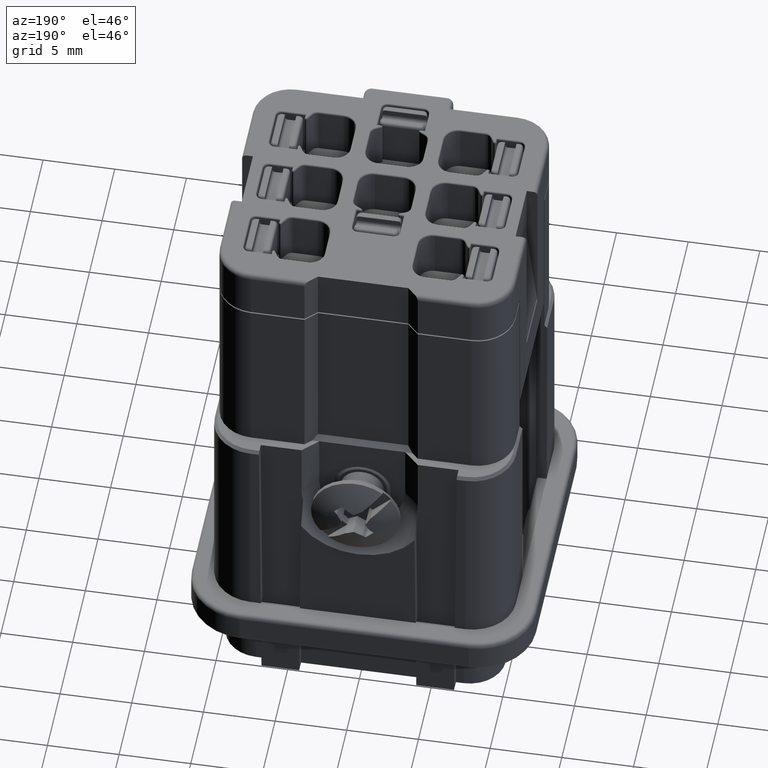
[diagram: clean part render]
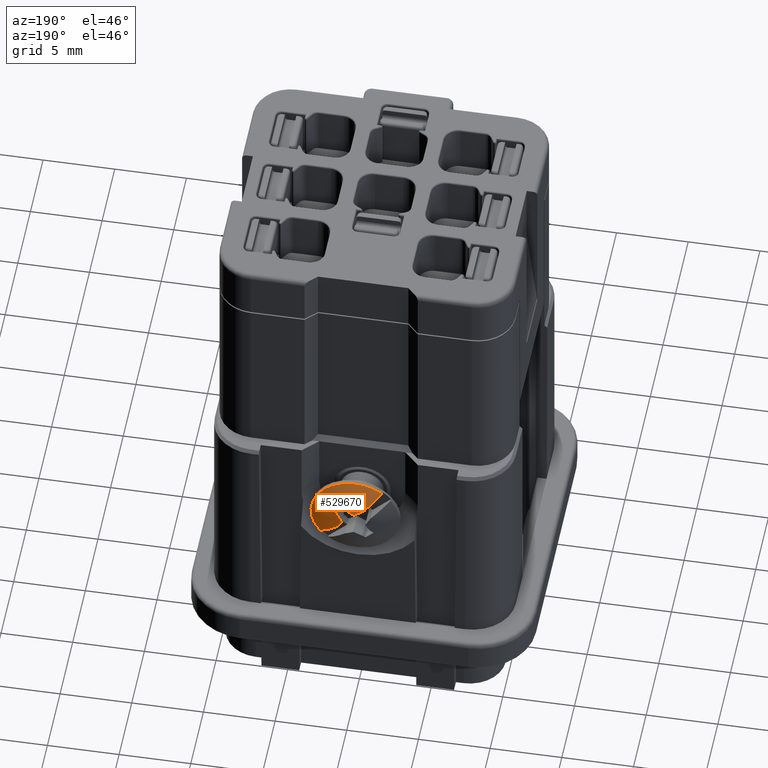
[diagram: same view with one face highlighted and labeled with its STEP entity id]
A machine part, auxiliary view. The second image highlights one B-rep face of the part: STEP entity #529670.
In plain terms, the highlighted spherical surface has radius 6.0779 mm.
Its self-contained STEP definition (entity closure, byte-faithful):
#472080=CARTESIAN_POINT('',(47.9292979315531,54.9909378235294,
37.1147863565477));
#472090=DIRECTION('',(-0.499999999999996,0.,0.866025403784441));
#472100=DIRECTION('',(0.866025403784441,0.,0.499999999999996));
#472110=AXIS2_PLACEMENT_3D('',#472080,#472090,#472100);
#472120=CIRCLE('',#472110,6.03634154592337);
#472130=CARTESIAN_POINT('',(48.8852857640086,60.9254865801441,
37.6667261889578));
#472140=VERTEX_POINT('',#472130);
#472150=CARTESIAN_POINT('',(48.284245,61.0133489711105,37.3197151420635)
);
#472160=VERTEX_POINT('',#472150);
#472170=EDGE_CURVE('',#472140,#472160,#472120,.T.);
#476040=CARTESIAN_POINT('',(48.8990313565477,54.9909378235294,
36.1450529315531));
#476050=DIRECTION('',(0.86602540378444,0.,-0.499999999999998));
#476060=DIRECTION('',(-0.499999999999998,-0.,-0.86602540378444));
#476070=AXIS2_PLACEMENT_3D('',#476040,#476050,#476060);
#476080=CIRCLE('',#476070,6.03634154592337);
#476090=CARTESIAN_POINT('',(49.1039601420635,61.0133489711105,36.5));
#476100=VERTEX_POINT('',#476090);
#476110=CARTESIAN_POINT('',(49.4509711889578,60.9254865801441,
37.1010407640085));
#476120=VERTEX_POINT('',#476110);
#476130=EDGE_CURVE('',#476100,#476120,#476080,.T.);
#478910=CARTESIAN_POINT('',(48.6391920684469,54.9909378235294,
37.1147863565476));
#478920=DIRECTION('',(0.499999999999996,0.,0.866025403784441));
#478930=DIRECTION('',(0.866025403784441,0.,-0.499999999999996));
#478940=AXIS2_PLACEMENT_3D('',#478910,#478920,#478930);
#478950=CIRCLE('',#478940,6.03634154592337);
#478960=CARTESIAN_POINT('',(47.6832042359915,60.9254865801441,
37.6667261889578));
#478970=VERTEX_POINT('',#478960);
#478980=EDGE_CURVE('',#472160,#478970,#478950,.T.);
#496840=CARTESIAN_POINT('',(48.284245,60.218879,36.5));
#496850=DIRECTION('',(0.,-1.,0.));
#496860=DIRECTION('',(-0.707106781186547,0.,-0.707106781186548));
#496870=AXIS2_PLACEMENT_3D('',#496840,#496850,#496860);
#496880=CIRCLE('',#496870,3.09999999999999);
#497040=CARTESIAN_POINT('',(46.3933812005462,60.218879,38.956549224403))
;
#497050=VERTEX_POINT('',#497040);
#497080=CARTESIAN_POINT('',(50.4762760216783,60.218879,38.6920310216783)
);
#497090=VERTEX_POINT('',#497080);
#497100=EDGE_CURVE('',#497090,#497050,#496880,.T.);
#501960=CARTESIAN_POINT('',(48.284245,54.9909378235294,36.5));
#501970=DIRECTION('',(0.,-1.,0.));
#501980=DIRECTION('',(-0.707106781186548,0.,-0.707106781186548));
#501990=AXIS2_PLACEMENT_3D('',#501960,#501970,#501980);
#502000=SPHERICAL_SURFACE('',#501990,6.07794117647059);
#510260=CARTESIAN_POINT('',(48.5670877124746,54.9909378235294,
36.7828427124746));
#510270=DIRECTION('',(0.707106781186547,0.,0.707106781186548));
#510280=DIRECTION('',(0.,-1.,0.));
#510290=AXIS2_PLACEMENT_3D('',#510260,#510270,#510280);
#510300=CIRCLE('',#510290,6.06476454156603);
#510310=EDGE_CURVE('',#478970,#497050,#510300,.T.);
#511140=CARTESIAN_POINT('',(49.4509711889578,60.9254865801441,
35.8989592359915));
#511150=VERTEX_POINT('',#511140);
#511180=CARTESIAN_POINT('',(48.8990313565476,54.9909378235294,
36.8549470684469));
#511190=DIRECTION('',(0.866025403784437,0.,0.500000000000002));
#511200=DIRECTION('',(0.500000000000002,-0.,-0.866025403784437));
#511210=AXIS2_PLACEMENT_3D('',#511180,#511190,#511200);
#511220=CIRCLE('',#511210,6.03634154592337);
#511230=EDGE_CURVE('',#511150,#476100,#511220,.T.);
#512430=CARTESIAN_POINT('',(50.740794224403,60.218879,34.6091362005462))
;
#512440=VERTEX_POINT('',#512430);
#512470=EDGE_CURVE('',#512440,#511150,#510300,.T.);
#522940=CARTESIAN_POINT('',(48.5670877124746,54.9909378235294,
36.2171572875254));
#522950=DIRECTION('',(0.707106781186548,0.,-0.707106781186547));
#522960=DIRECTION('',(0.,-1.,0.));
#522970=AXIS2_PLACEMENT_3D('',#522940,#522950,#522960);
#522980=CIRCLE('',#522970,6.06476454156603);
#522990=CARTESIAN_POINT('',(49.6631032233138,60.8542874587326,
37.3131727983645));
#523000=VERTEX_POINT('',#522990);
#523010=EDGE_CURVE('',#476120,#523000,#522980,.T.);
#523930=CARTESIAN_POINT('',(49.0974177983646,60.8542874587326,
37.8788582233138));
#523940=VERTEX_POINT('',#523930);
#523970=CARTESIAN_POINT('',(48.0014022875254,54.9909378235294,
36.7828427124746));
#523980=DIRECTION('',(-0.707106781186548,0.,0.707106781186547));
#523990=DIRECTION('',(0.,1.,0.));
#524000=AXIS2_PLACEMENT_3D('',#523970,#523980,#523990);
#524010=CIRCLE('',#524000,6.06476454156604);
#524020=EDGE_CURVE('',#523940,#472140,#524010,.T.);
#527210=CARTESIAN_POINT('',(49.3802605108392,54.9909378235294,
37.5960155108392));
#527220=DIRECTION('',(0.707106781186547,0.,0.707106781186548));
#527230=DIRECTION('',(0.,-1.,0.));
#527240=AXIS2_PLACEMENT_3D('',#527210,#527220,#527230);
#527250=CIRCLE('',#527240,5.87697787511887);
#527260=EDGE_CURVE('',#523000,#523940,#527250,.T.);
#529530=ORIENTED_EDGE('',*,*,#510310,.T.);
#529540=ORIENTED_EDGE('',*,*,#478980,.T.);
#529550=ORIENTED_EDGE('',*,*,#472170,.T.);
#529560=ORIENTED_EDGE('',*,*,#524020,.T.);
#529570=ORIENTED_EDGE('',*,*,#527260,.T.);
#529580=ORIENTED_EDGE('',*,*,#523010,.T.);
#529590=ORIENTED_EDGE('',*,*,#476130,.T.);
#529600=ORIENTED_EDGE('',*,*,#511230,.T.);
#529610=ORIENTED_EDGE('',*,*,#512470,.T.);
#529620=EDGE_CURVE('',#512440,#497090,#496880,.T.);
#529630=ORIENTED_EDGE('',*,*,#529620,.F.);
#529640=ORIENTED_EDGE('',*,*,#497100,.F.);
#529650=EDGE_LOOP('',(#529640,#529630,#529610,#529600,#529590,#529580,
#529570,#529560,#529550,#529540,#529530));
#529660=FACE_OUTER_BOUND('',#529650,.T.);
#529670=ADVANCED_FACE('',(#529660),#502000,.T.);